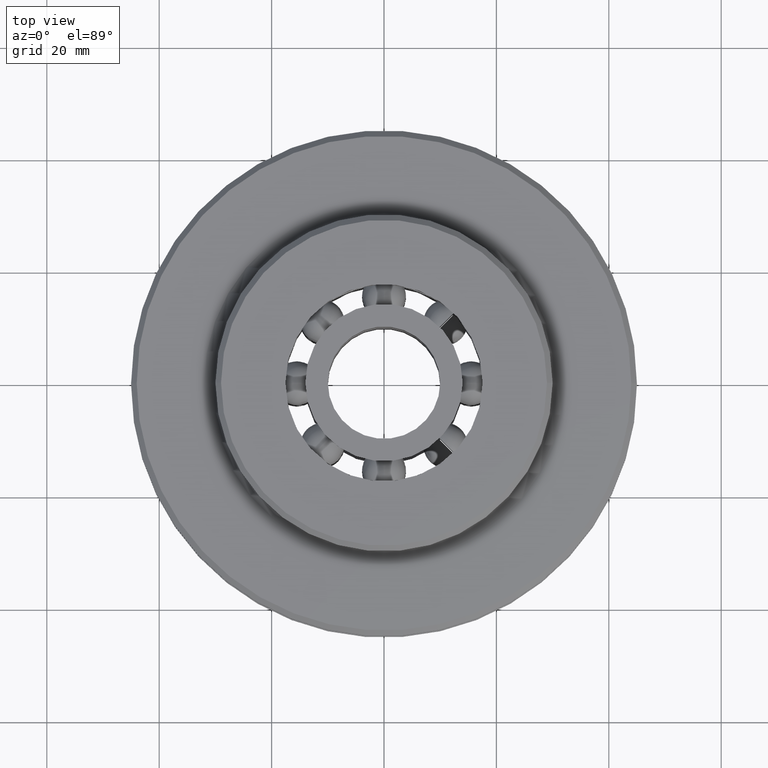
[diagram: clean part render]
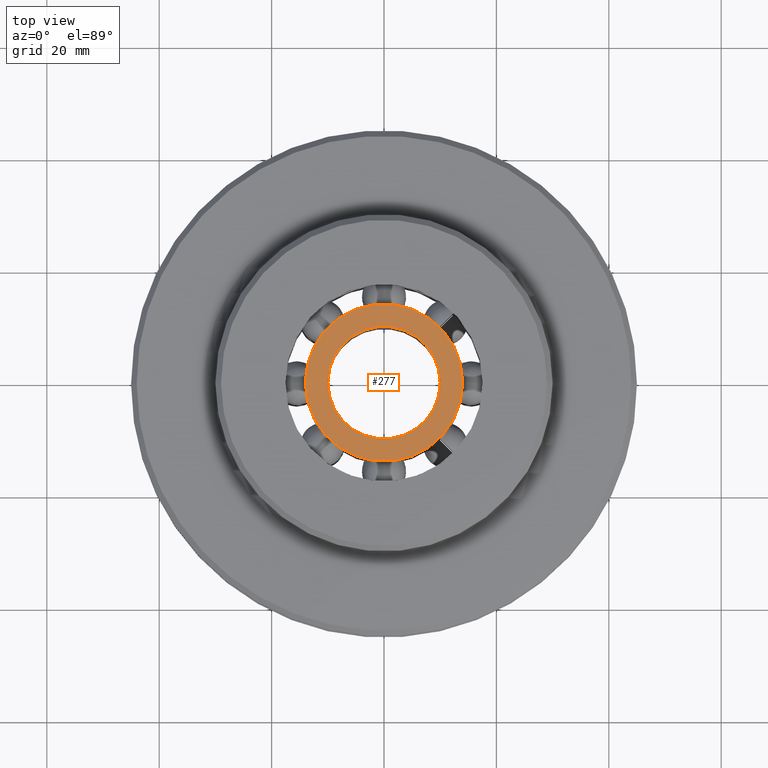
[diagram: same view with one face highlighted and labeled with its STEP entity id]
A machine part, top view. The second image highlights one B-rep face of the part: STEP entity #277.
In plain terms, the highlighted planar face has unit normal (0, 0, 1).
Its self-contained STEP definition (entity closure, byte-faithful):
#277=ADVANCED_FACE('',(#619,#620),#621,.T.);
#619=FACE_BOUND('',#1029,.T.);
#620=FACE_OUTER_BOUND('',#1030,.T.);
#621=PLANE('',#1031);
#1029=EDGE_LOOP('',(#1891,#1892));
#1030=EDGE_LOOP('',(#1893,#1894));
#1031=AXIS2_PLACEMENT_3D('',#1895,#1896,#1897);
#1891=ORIENTED_EDGE('',*,*,#2960,.T.);
#1892=ORIENTED_EDGE('',*,*,#2822,.T.);
#1893=ORIENTED_EDGE('',*,*,#2941,.T.);
#1894=ORIENTED_EDGE('',*,*,#2958,.T.);
#1895=CARTESIAN_POINT('',(0.0,0.0,14.0));
#1896=DIRECTION('',(0.0,0.0,1.0));
#1897=DIRECTION('',(1.0,0.0,0.0));
#2822=EDGE_CURVE('',#3537,#3534,#3538,.T.);
#2941=EDGE_CURVE('',#3732,#3736,#3738,.T.);
#2958=EDGE_CURVE('',#3736,#3732,#3759,.T.);
#2960=EDGE_CURVE('',#3534,#3537,#3761,.T.);
#3534=VERTEX_POINT('',#6037);
#3537=VERTEX_POINT('',#6041);
#3538=CIRCLE('',#6042,10.0);
#3732=VERTEX_POINT('',#7071);
#3736=VERTEX_POINT('',#7076);
#3738=CIRCLE('',#7079,14.0);
#3759=CIRCLE('',#7102,14.0);
#3761=CIRCLE('',#7104,10.0);
#6037=CARTESIAN_POINT('',(10.0,0.0,14.0));
#6041=CARTESIAN_POINT('',(-10.0,1.22464679914735E-015,14.0));
#6042=AXIS2_PLACEMENT_3D('',#8437,#8438,#8439);
#7071=CARTESIAN_POINT('',(14.0,0.0,14.0));
#7076=CARTESIAN_POINT('',(-14.0,1.71450551880629E-015,14.0));
#7079=AXIS2_PLACEMENT_3D('',#8585,#8586,#8587);
#7102=AXIS2_PLACEMENT_3D('',#8614,#8615,#8616);
#7104=AXIS2_PLACEMENT_3D('',#8617,#8618,#8619);
#8437=CARTESIAN_POINT('',(0.0,0.0,14.0));
#8438=DIRECTION('',(0.0,0.0,-1.0));
#8439=DIRECTION('',(1.0,0.0,0.0));
#8585=CARTESIAN_POINT('',(0.0,0.0,14.0));
#8586=DIRECTION('',(0.0,0.0,1.0));
#8587=DIRECTION('',(1.0,0.0,0.0));
#8614=CARTESIAN_POINT('',(0.0,0.0,14.0));
#8615=DIRECTION('',(0.0,0.0,1.0));
#8616=DIRECTION('',(1.0,0.0,0.0));
#8617=CARTESIAN_POINT('',(0.0,0.0,14.0));
#8618=DIRECTION('',(0.0,0.0,-1.0));
#8619=DIRECTION('',(1.0,0.0,0.0));